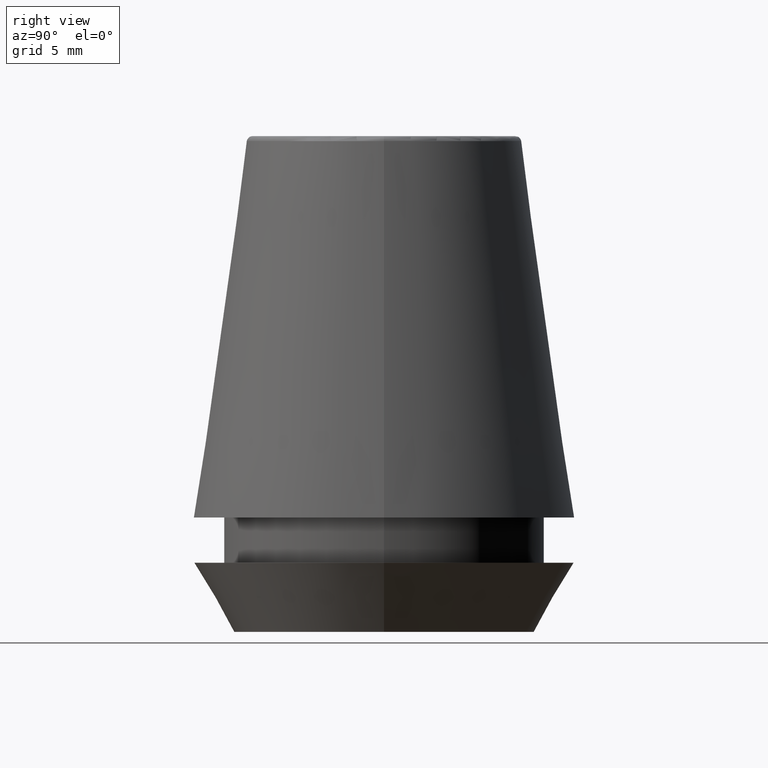
[diagram: clean part render]
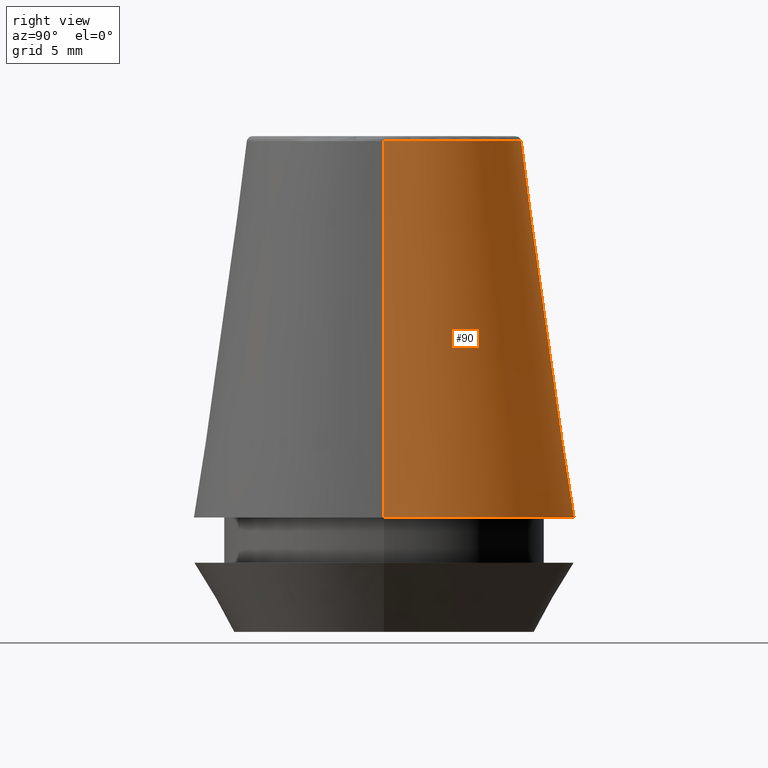
[diagram: same view with one face highlighted and labeled with its STEP entity id]
A machine part, right view. The second image highlights one B-rep face of the part: STEP entity #90.
In plain terms, the highlighted conical surface has half-angle 8 deg.
Its self-contained STEP definition (entity closure, byte-faithful):
#35 = DIRECTION ( 'NONE',  ( -0.0000000000000000000, -0.0000000000000000000, 1.000000000000000000 ) ) ;
#53 = VERTEX_POINT ( 'NONE', #291 ) ;
#55 = EDGE_CURVE ( 'NONE', #137, #53, #154, .T. ) ;
#58 = DIRECTION ( 'NONE',  ( 1.000000000000000000, 0.0000000000000000000, 0.0000000000000000000 ) ) ;
#69 = VECTOR ( 'NONE', #341, 1000.000000000000000 ) ;
#71 = CARTESIAN_POINT ( 'NONE',  ( -13.03657776635556700, 0.0000000000000000000, 7.842050807568876200 ) ) ;
#79 = VERTEX_POINT ( 'NONE', #140 ) ;
#82 = CARTESIAN_POINT ( 'NONE',  ( 13.03657776635556700, 1.596520323340289600E-015, 7.842050807568876200 ) ) ;
#85 = EDGE_CURVE ( 'NONE', #256, #137, #344, .T. ) ;
#87 = CARTESIAN_POINT ( 'NONE',  ( 13.03657776635556700, 1.596520323340289600E-015, 7.842050807568876200 ) ) ;
#90 = ADVANCED_FACE ( 'NONE', ( #118 ), #168, .T. ) ;
#106 = CARTESIAN_POINT ( 'NONE',  ( 0.0000000000000000000, 0.0000000000000000000, 33.65566924038402900 ) ) ;
#107 = AXIS2_PLACEMENT_3D ( 'NONE', #348, #114, #293 ) ;
#114 = DIRECTION ( 'NONE',  ( -0.0000000000000000000, -0.0000000000000000000, 1.000000000000000000 ) ) ;
#116 = DIRECTION ( 'NONE',  ( -1.000000000000000000, 0.0000000000000000000, 0.0000000000000000000 ) ) ;
#118 = FACE_OUTER_BOUND ( 'NONE', #376, .T. ) ;
#137 = VERTEX_POINT ( 'NONE', #87 ) ;
#140 = CARTESIAN_POINT ( 'NONE',  ( -9.408710285118862900, 0.0000000000000000000, 33.65566924038402900 ) ) ;
#145 = ORIENTED_EDGE ( 'NONE', *, *, #294, .F. ) ;
#154 = CIRCLE ( 'NONE', #107, 13.03657776635556700 ) ;
#156 = ORIENTED_EDGE ( 'NONE', *, *, #85, .T. ) ;
#168 = CONICAL_SURFACE ( 'NONE', #370, 13.03657776635556700, 0.1396263401595396500 ) ;
#187 = VECTOR ( 'NONE', #323, 1000.000000000000000 ) ;
#256 = VERTEX_POINT ( 'NONE', #379 ) ;
#285 = EDGE_CURVE ( 'NONE', #256, #79, #342, .T. ) ;
#289 = ORIENTED_EDGE ( 'NONE', *, *, #285, .F. ) ;
#291 = CARTESIAN_POINT ( 'NONE',  ( -13.03657776635556700, 0.0000000000000000000, 7.842050807568876200 ) ) ;
#293 = DIRECTION ( 'NONE',  ( 1.000000000000000000, 0.0000000000000000000, 0.0000000000000000000 ) ) ;
#294 = EDGE_CURVE ( 'NONE', #79, #53, #311, .T. ) ;
#311 = LINE ( 'NONE', #71, #69 ) ;
#323 = DIRECTION ( 'NONE',  ( 0.1391731009600587800, 1.704378926181474000E-017, -0.9902680687415712500 ) ) ;
#326 = CARTESIAN_POINT ( 'NONE',  ( 0.0000000000000000000, 0.0000000000000000000, 7.842050807568876200 ) ) ;
#341 = DIRECTION ( 'NONE',  ( -0.1391731009600587800, 0.0000000000000000000, -0.9902680687415712500 ) ) ;
#342 = CIRCLE ( 'NONE', #367, 9.408710285118862900 ) ;
#344 = LINE ( 'NONE', #82, #187 ) ;
#348 = CARTESIAN_POINT ( 'NONE',  ( 0.0000000000000000000, 0.0000000000000000000, 7.842050807568876200 ) ) ;
#350 = DIRECTION ( 'NONE',  ( 0.0000000000000000000, 0.0000000000000000000, -1.000000000000000000 ) ) ;
#367 = AXIS2_PLACEMENT_3D ( 'NONE', #106, #35, #58 ) ;
#370 = AXIS2_PLACEMENT_3D ( 'NONE', #326, #350, #116 ) ;
#375 = ORIENTED_EDGE ( 'NONE', *, *, #55, .T. ) ;
#376 = EDGE_LOOP ( 'NONE', ( #289, #156, #375, #145 ) ) ;
#379 = CARTESIAN_POINT ( 'NONE',  ( 9.408710285118862900, 1.374377508408924700E-015, 33.65566924038402900 ) ) ;